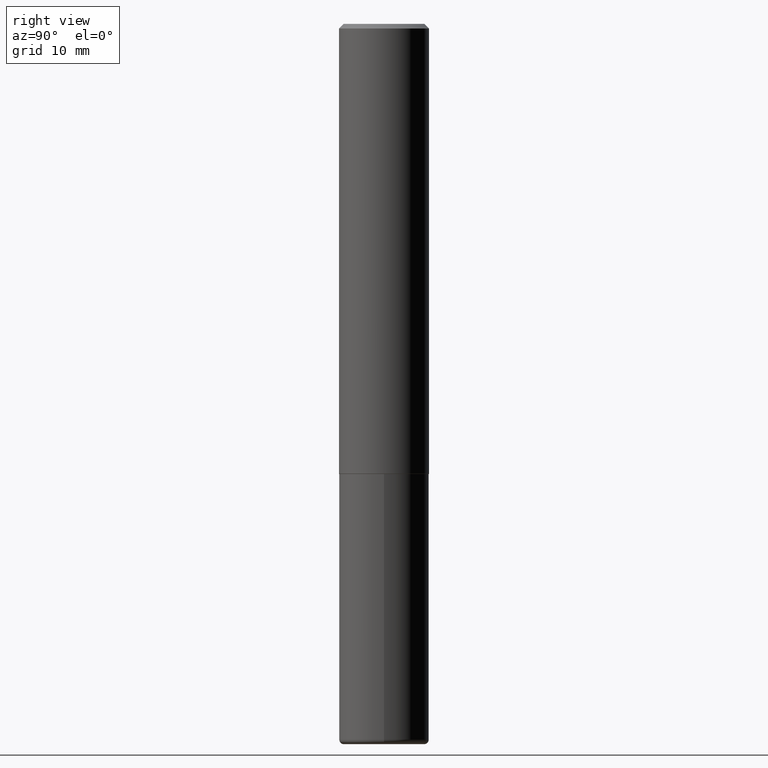
[diagram: clean part render]
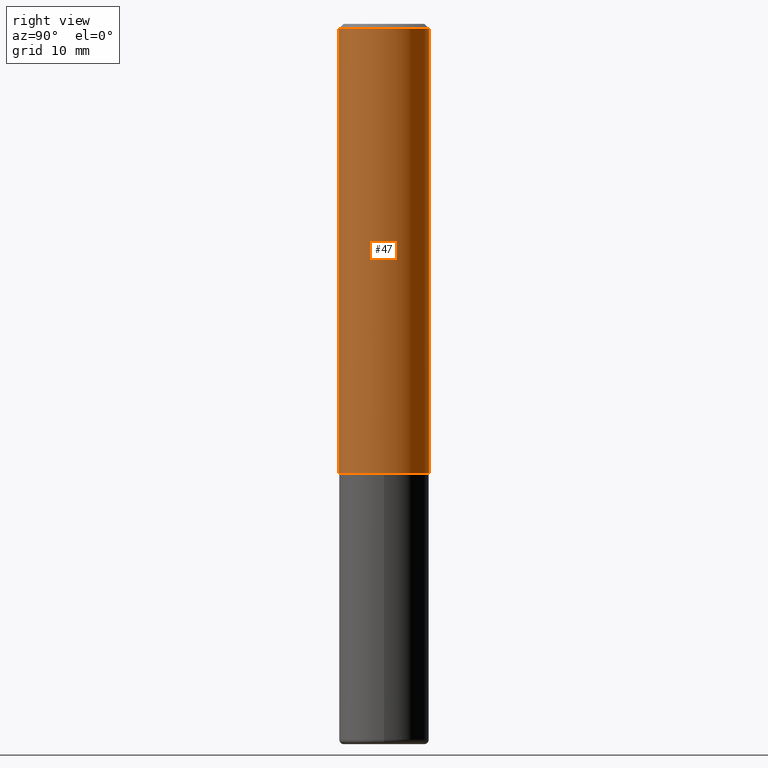
[diagram: same view with one face highlighted and labeled with its STEP entity id]
A machine part, right view. The second image highlights one B-rep face of the part: STEP entity #47.
In plain terms, the highlighted cylindrical surface (partial cylindrical patch) has radius 5 mm, axis along (-0, 0, 1).
Its self-contained STEP definition (entity closure, byte-faithful):
#11 = ORIENTED_EDGE ( 'NONE', *, *, #340, .T. ) ;
#15 = AXIS2_PLACEMENT_3D ( 'NONE', #230, #294, #189 ) ;
#20 = ORIENTED_EDGE ( 'NONE', *, *, #208, .F. ) ;
#24 = DIRECTION ( 'NONE',  ( -6.982962677686265922E-15, -1.000000000000000000, 3.491767699944464545E-15 ) ) ;
#26 = VERTEX_POINT ( 'NONE', #95 ) ;
#42 = ORIENTED_EDGE ( 'NONE', *, *, #142, .T. ) ;
#46 = VERTEX_POINT ( 'NONE', #119 ) ;
#47 = ADVANCED_FACE ( 'NONE', ( #338 ), #251, .T. ) ;
#54 = CARTESIAN_POINT ( 'NONE',  ( 0.000000000000000000, 0.000000000000000000, 0.000000000000000000 ) ) ;
#73 = CARTESIAN_POINT ( 'NONE',  ( 1.398703375343757985E-15, 0.1968500000000001360, -6.873544717340683232E-16 ) ) ;
#83 = VECTOR ( 'NONE', #236, 39.37007874015748143 ) ;
#90 = AXIS2_PLACEMENT_3D ( 'NONE', #257, #162, #131 ) ;
#95 = CARTESIAN_POINT ( 'NONE',  ( -1.350489030861325626E-15, -0.1968500000000001082, -0.01999999999999935510 ) ) ;
#98 = LINE ( 'NONE', #225, #83 ) ;
#115 = ORIENTED_EDGE ( 'NONE', *, *, #331, .F. ) ;
#119 = CARTESIAN_POINT ( 'NONE',  ( 1.398703375343782440E-15, 0.1968499999999933914, -1.967500000000000471 ) ) ;
#131 = DIRECTION ( 'NONE',  ( -6.982962677686265922E-15, -1.000000000000000000, 4.163344669033670112E-15 ) ) ;
#142 = EDGE_CURVE ( 'NONE', #146, #46, #255, .T. ) ;
#146 = VERTEX_POINT ( 'NONE', #275 ) ;
#153 = VERTEX_POINT ( 'NONE', #182 ) ;
#162 = DIRECTION ( 'NONE',  ( -2.445268841296851437E-29, 3.491767699944464545E-15, 1.000000000000000000 ) ) ;
#169 = LINE ( 'NONE', #73, #348 ) ;
#182 = CARTESIAN_POINT ( 'NONE',  ( 1.374596203102542200E-15, 0.1968499999999999694, -0.02000000000000072900 ) ) ;
#189 = DIRECTION ( 'NONE',  ( -6.982962677686265133E-15, -1.000000000000000000, 3.491137977679279029E-15 ) ) ;
#208 = EDGE_CURVE ( 'NONE', #26, #153, #377, .T. ) ;
#225 = CARTESIAN_POINT ( 'NONE',  ( -1.374596203102542397E-15, -0.1968500000000001360, 6.873544717340683232E-16 ) ) ;
#230 = CARTESIAN_POINT ( 'NONE',  ( 4.890537682593712927E-31, -6.983535399888942699E-17, -0.02000000000000004205 ) ) ;
#236 = DIRECTION ( 'NONE',  ( -2.445268841296851437E-29, 3.491767699944464940E-15, 1.000000000000000000 ) ) ;
#248 = AXIS2_PLACEMENT_3D ( 'NONE', #54, #309, #24 ) ;
#251 = CYLINDRICAL_SURFACE ( 'NONE', #248, 0.1968500000000001360 ) ;
#255 = CIRCLE ( 'NONE', #90, 0.1968500000000002470 ) ;
#257 = CARTESIAN_POINT ( 'NONE',  ( 4.811066445251554069E-29, -6.870052949640732965E-15, -1.967499999999999805 ) ) ;
#275 = CARTESIAN_POINT ( 'NONE',  ( -1.374596203102495065E-15, -0.1968500000000071026, -1.967499999999998916 ) ) ;
#294 = DIRECTION ( 'NONE',  ( -2.445268841296851437E-29, 3.491767699944464545E-15, 1.000000000000000000 ) ) ;
#309 = DIRECTION ( 'NONE',  ( -2.445268841296851437E-29, 3.491767699944464545E-15, 1.000000000000000000 ) ) ;
#331 = EDGE_CURVE ( 'NONE', #146, #26, #98, .T. ) ;
#338 = FACE_OUTER_BOUND ( 'NONE', #370, .T. ) ;
#340 = EDGE_CURVE ( 'NONE', #46, #153, #169, .T. ) ;
#348 = VECTOR ( 'NONE', #355, 39.37007874015748143 ) ;
#355 = DIRECTION ( 'NONE',  ( -2.445268841296851437E-29, 3.491767699944464940E-15, 1.000000000000000000 ) ) ;
#370 = EDGE_LOOP ( 'NONE', ( #42, #11, #20, #115 ) ) ;
#377 = CIRCLE ( 'NONE', #15, 0.1968500000000000527 ) ;